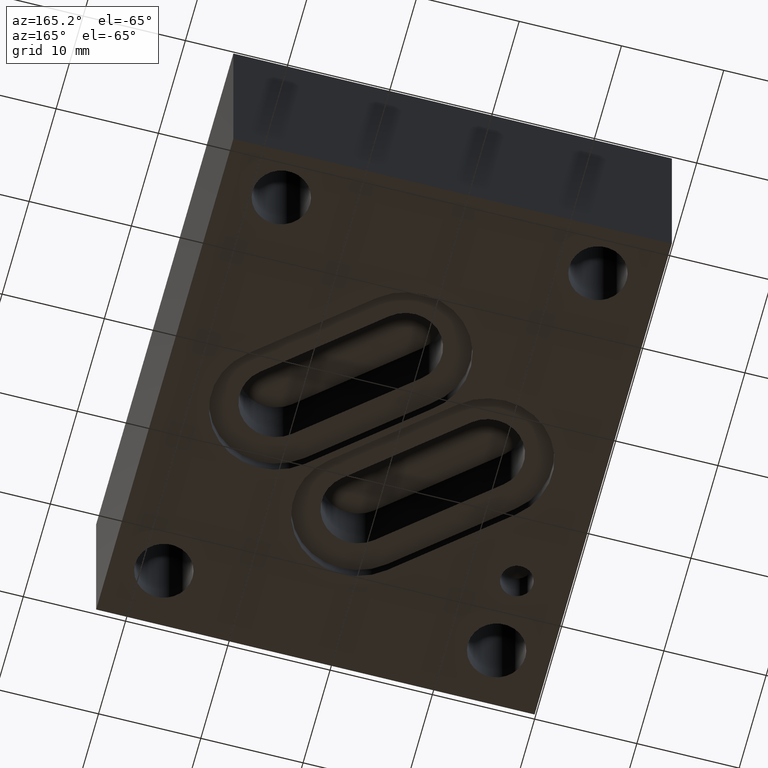
[diagram: clean part render]
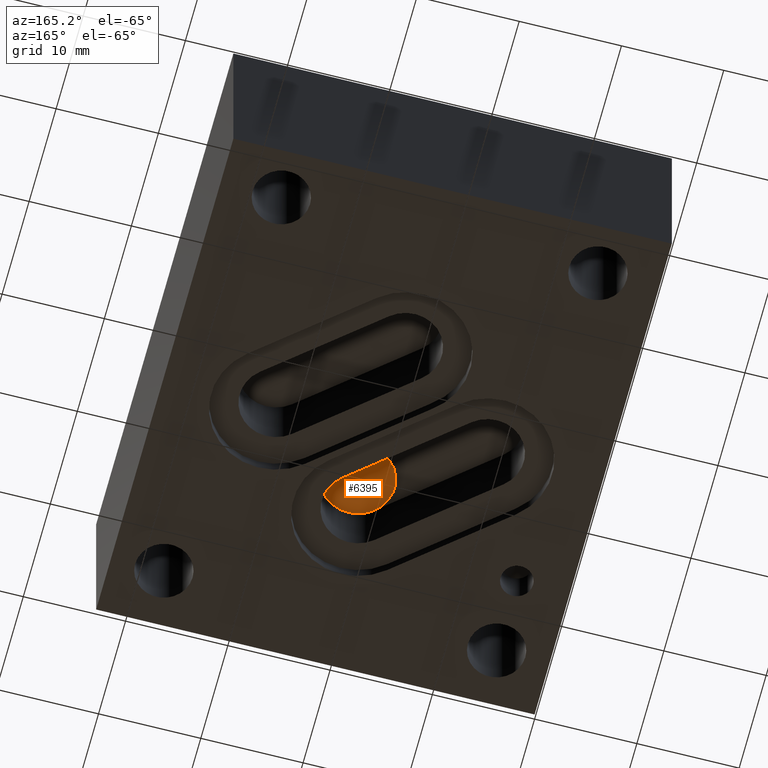
[diagram: same view with one face highlighted and labeled with its STEP entity id]
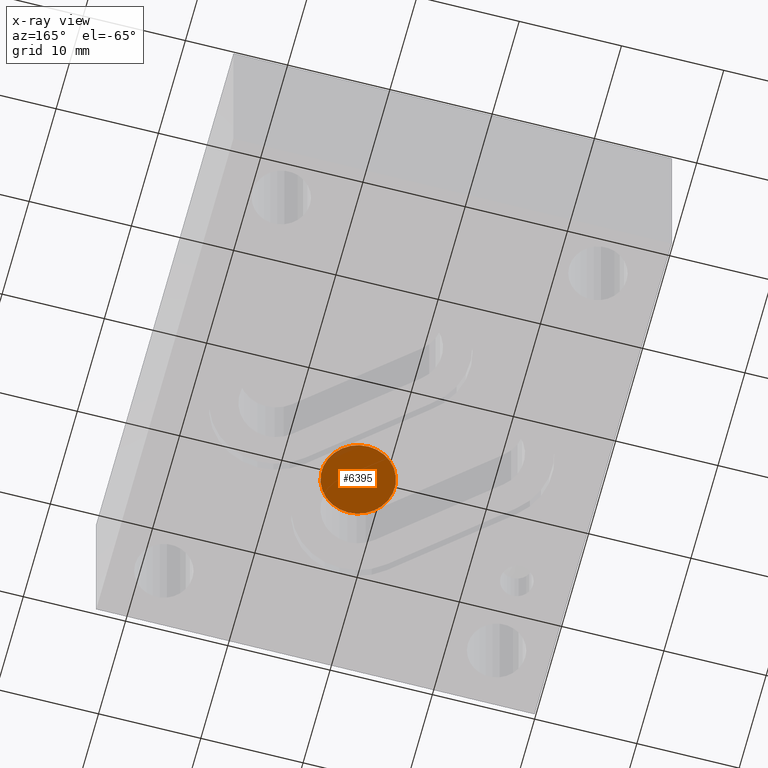
[diagram: x-ray of the same camera — body ghosted, the highlighted face saturated]
A machine part, auxiliary view. The second image highlights one B-rep face of the part: STEP entity #6395.
The next image is the same camera in x-ray: the body ghosted, the highlighted face saturated — about 4% of this face is hidden behind the body in this view.
In plain terms, the highlighted planar face has unit normal (0, 0, 1).
Its self-contained STEP definition (entity closure, byte-faithful):
#16=CIRCLE('',#6638,0.1405);
#42=CIRCLE('',#6681,0.1405);
#524=FACE_OUTER_BOUND('',#895,.T.);
#895=EDGE_LOOP('',(#5760,#5761));
#3042=VERTEX_POINT('',#11231);
#3043=VERTEX_POINT('',#11232);
#3931=EDGE_CURVE('',#3042,#3043,#16,.T.);
#3996=EDGE_CURVE('',#3043,#3042,#42,.T.);
#5760=ORIENTED_EDGE('',*,*,#3996,.T.);
#5761=ORIENTED_EDGE('',*,*,#3931,.T.);
#6065=PLANE('',#6680);
#6395=ADVANCED_FACE('',(#524),#6065,.F.);
#6638=AXIS2_PLACEMENT_3D('',#11233,#7753,#7754);
#6680=AXIS2_PLACEMENT_3D('',#11360,#7876,#7877);
#6681=AXIS2_PLACEMENT_3D('',#11361,#7878,#7879);
#7753=DIRECTION('center_axis',(0.,0.,-1.));
#7754=DIRECTION('ref_axis',(1.,0.,0.));
#7876=DIRECTION('center_axis',(0.,0.,1.));
#7877=DIRECTION('ref_axis',(1.,0.,0.));
#7878=DIRECTION('center_axis',(0.,0.,-1.));
#7879=DIRECTION('ref_axis',(1.,0.,0.));
#11231=CARTESIAN_POINT('',(0.753495115074003,0.516994226905639,0.312882287401575));
#11232=CARTESIAN_POINT('',(0.935004884925997,0.731505773094361,0.312882287401575));
#11233=CARTESIAN_POINT('Origin',(0.84425,0.62425,0.312882287401575));
#11360=CARTESIAN_POINT('Origin',(0.9145,0.62425,0.312882287401575));
#11361=CARTESIAN_POINT('Origin',(0.84425,0.62425,0.312882287401575));